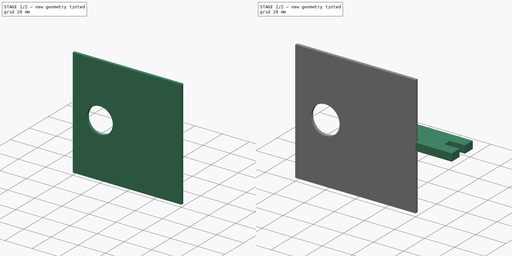
[diagram: build sequence overview — one tinted view per stage of 2, left to right]
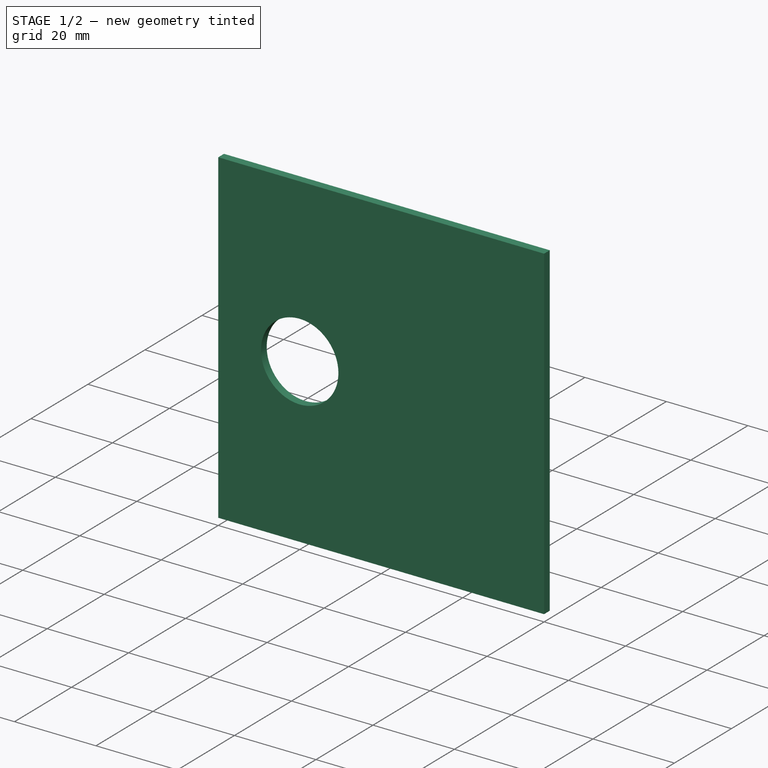
[diagram: stage 1 of 2 — iso view after this stage's code; geometry added in this stage tinted green]
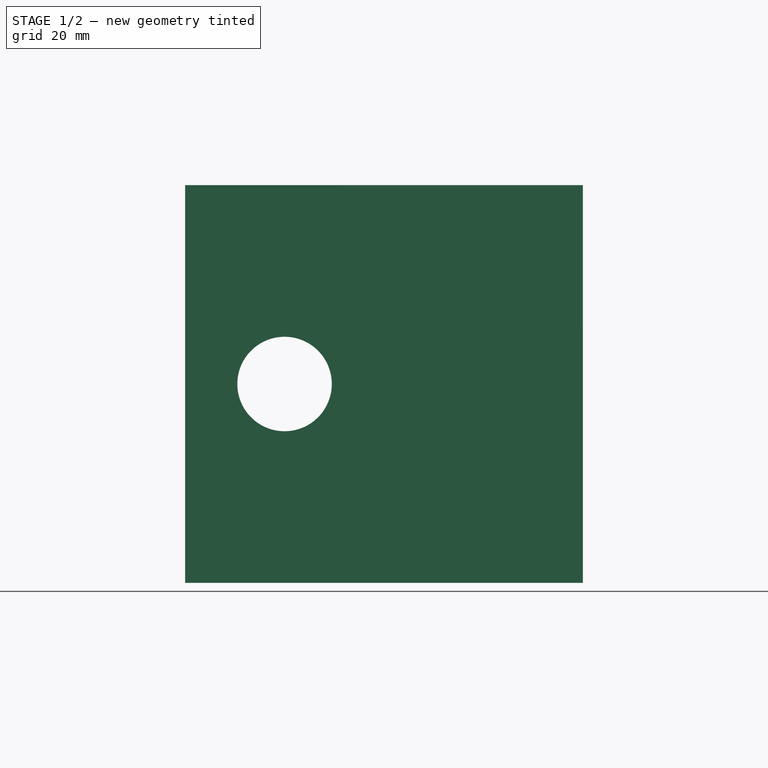
[diagram: stage 1 of 2 — front view after this stage's code; geometry added in this stage tinted green]
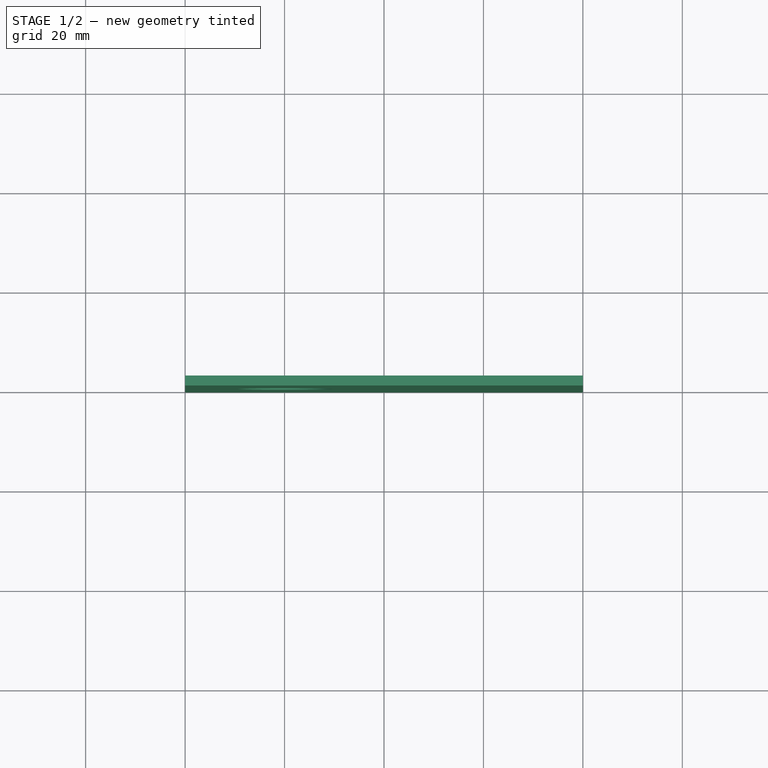
[diagram: stage 1 of 2 — top view after this stage's code; geometry added in this stage tinted green]
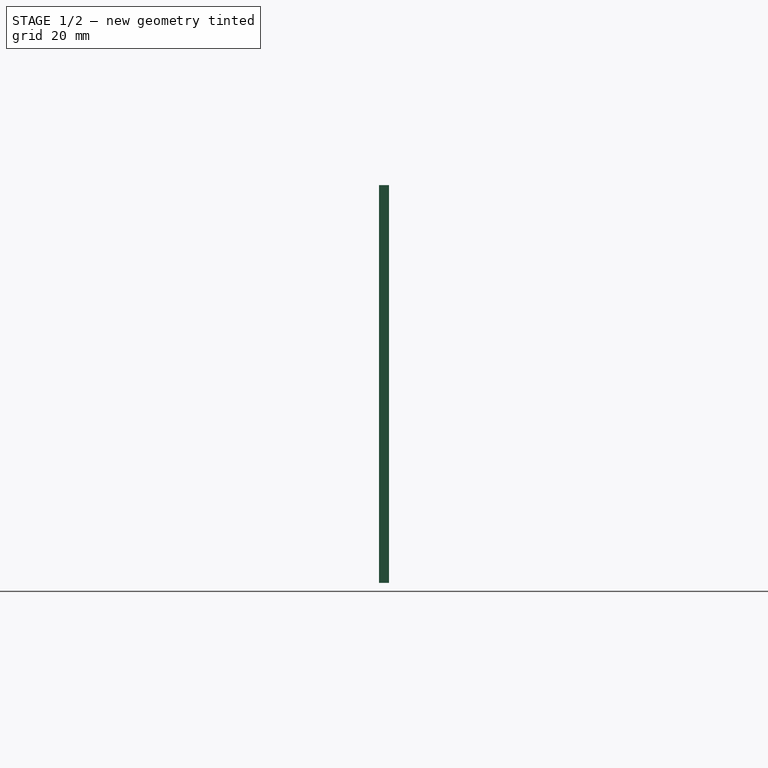
[diagram: stage 1 of 2 — right view after this stage's code; geometry added in this stage tinted green]
FCSTD DOCUMENT  (FreeCAD 1.0R39319 (Git))
Label: X-Axis Ball Holder
License: All rights reserved
LicenseURL: https://en.wikipedia.org/wiki/All_rights_reserved
objects: Sketcher::SketchObject×2, PartDesign::Pad×2, PartDesign::CoordinateSystem×2, PartDesign::Body×1, App::Part×1
note: 13 computed .brp shape members not serialized (recipe doc carries the construction recipe); baked Part::Feature solids carry a one-line shape summary decoded from their .brp

FEATURE [Sketcher::SketchObject] Sketch
  ArcFitTolerance = 1e-06
  AttachmentSupport = -> [XZ_Plane001]
  FullyConstrained = true
  MakeInternals = false
  MapMode = 5
  Placement = pos=(0,0,0) rot=(1,0,0;1.5708rad)
  sketch-geometry (5):
    g0: LineSegment StartX=-80 StartY=40 StartZ=0 EndX=-80 EndY=-40 EndZ=0
    g1: LineSegment StartX=-80 StartY=-40 StartZ=0 EndX=0 EndY=-40 EndZ=0
    g2: LineSegment StartX=0 StartY=-40 StartZ=0 EndX=0 EndY=40 EndZ=0
    g3: LineSegment StartX=0 StartY=40 StartZ=0 EndX=-80 EndY=40 EndZ=0
    g4: Circle CenterX=-60 CenterY=0 CenterZ=0 NormalX=0 NormalY=0 NormalZ=1 AngleXU=0 Radius=9.5
  constraints (14):
    c: Coincident(g0,g1)
    c: Coincident(g1,g2)
    c: Coincident(g2,g3)
    c: Coincident(g3,g0)
    c: Vertical(g2)
    c: Horizontal(g1)
    c: Horizontal(g3)
    c: PointOnObject(g1,g-2)
    c: PointOnObject(g4,g-1)
    c: Distance(g1,g3) = 80
    c: DistanceX(g3,g3) = 80
    c: Diameter(g4) = 19
    c: Distance(g4,g0) = 20
    c: Symmetric(g0,g0,g-1)
FEATURE [PartDesign::Pad] Pad
  Direction = (0,-1,2e-16)
  Length = 2
  Length2 = 10
  Placement = pos=(0,0,0) rot=(1,0,0;1.5708rad)
  Profile = -> Sketch
  ReferenceAxis = -> Sketch [N_Axis]
  Refine = true
  Reversed = true
  Suppressed = false
  Type = 0
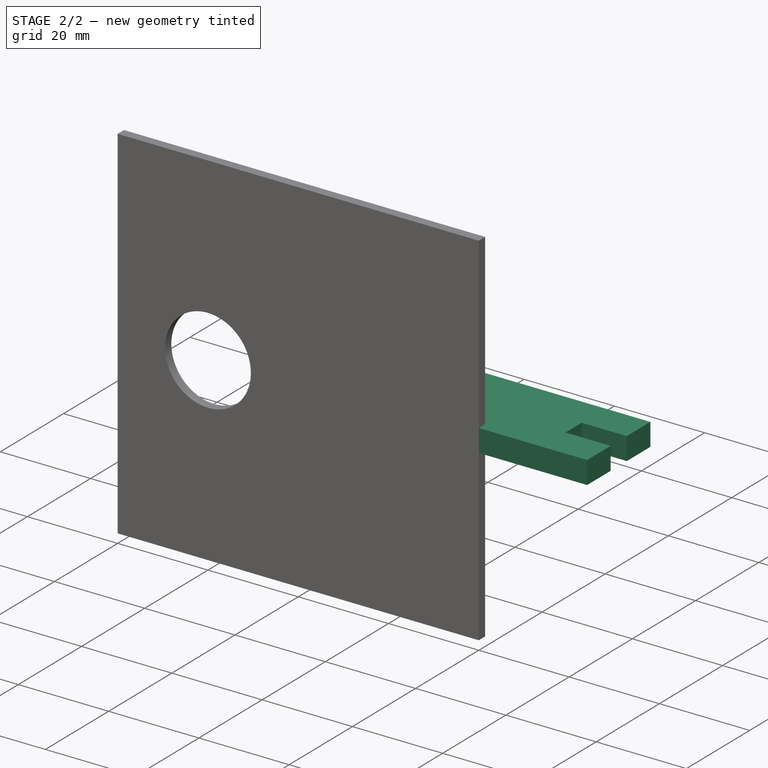
[diagram: stage 2 of 2 — iso view after this stage's code; geometry added in this stage tinted green]
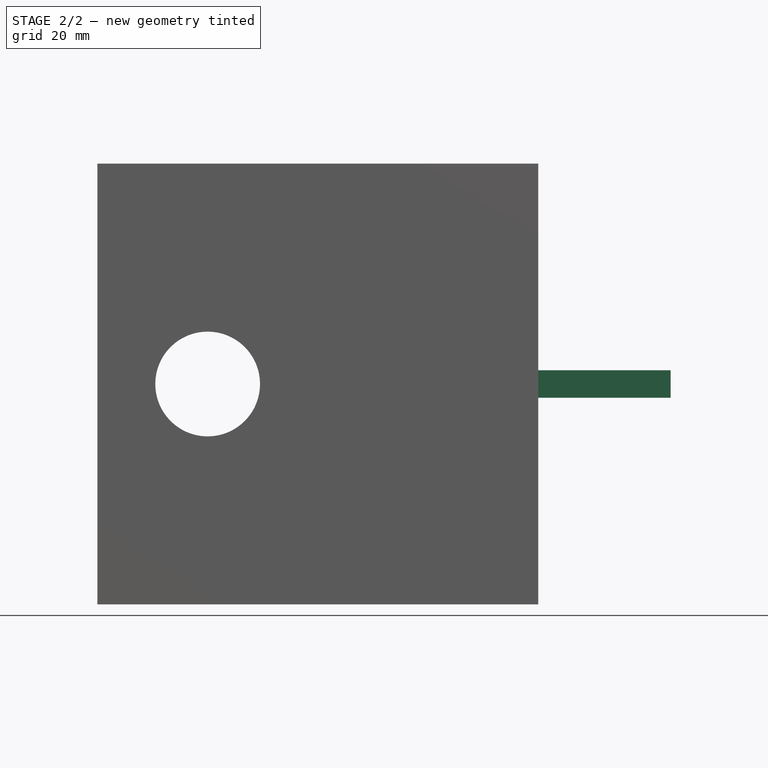
[diagram: stage 2 of 2 — front view after this stage's code; geometry added in this stage tinted green]
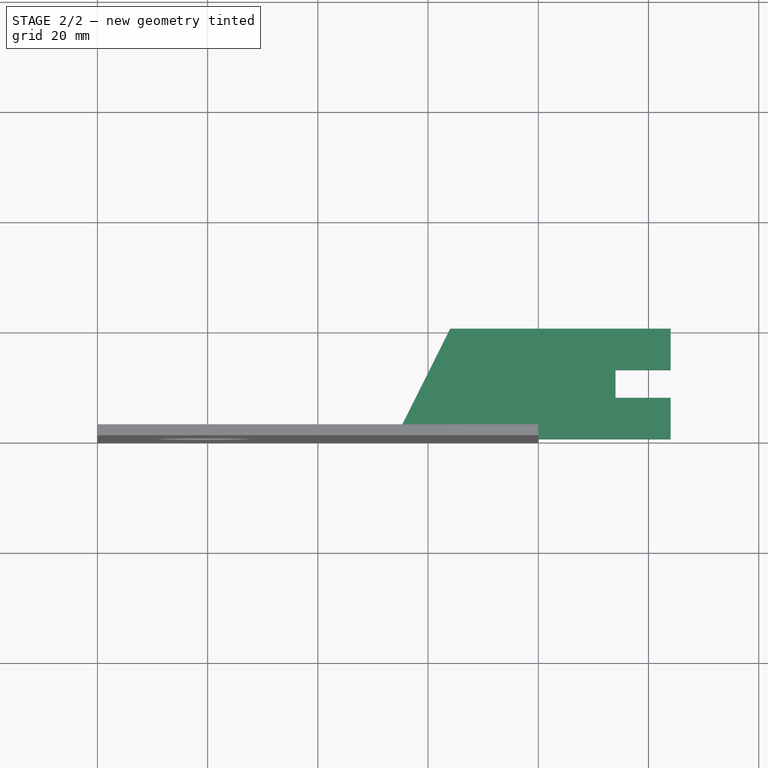
[diagram: stage 2 of 2 — top view after this stage's code; geometry added in this stage tinted green]
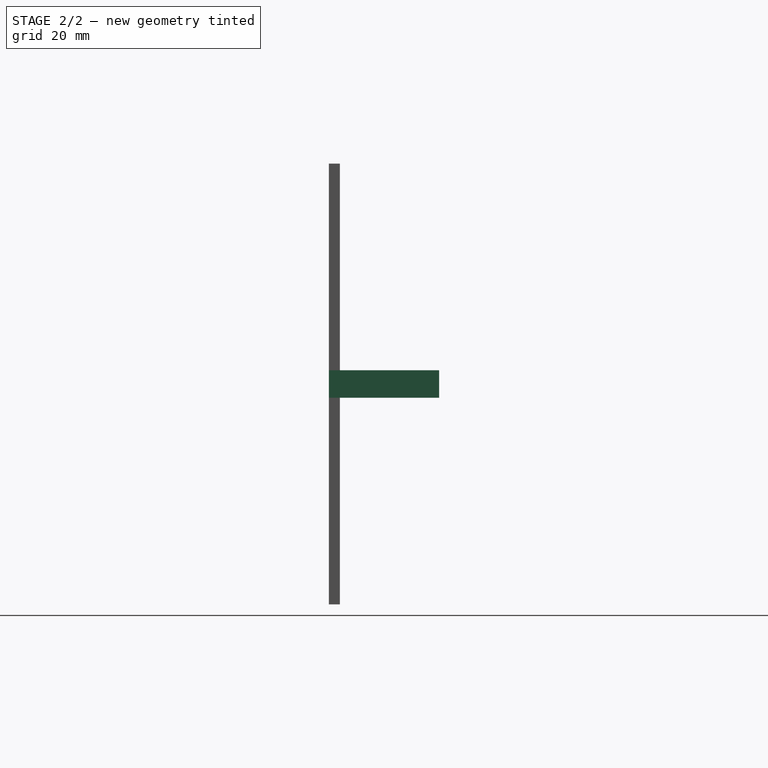
[diagram: stage 2 of 2 — right view after this stage's code; geometry added in this stage tinted green]
FEATURE [Sketcher::SketchObject] Sketch001
  ArcFitTolerance = 1e-06
  AttachmentSupport = -> [XY_Plane001]
  FullyConstrained = true
  MakeInternals = false
  MapMode = 5
  sketch-geometry (9):
    g0: LineSegment StartX=-26 StartY=0 StartZ=0 EndX=-16 EndY=20 EndZ=0
    g1: LineSegment StartX=-16 StartY=20 StartZ=0 EndX=24 EndY=20 EndZ=0
    g2: LineSegment StartX=24 StartY=20 StartZ=0 EndX=24 EndY=12.55 EndZ=0
    g3: LineSegment StartX=24 StartY=12.55 StartZ=0 EndX=14 EndY=12.55 EndZ=0
    g4: LineSegment StartX=14 StartY=12.55 StartZ=0 EndX=14 EndY=7.45 EndZ=0
    g5: LineSegment StartX=14 StartY=7.45 StartZ=0 EndX=24 EndY=7.45 EndZ=0
    g6: LineSegment StartX=24 StartY=7.45 StartZ=0 EndX=24 EndY=0 EndZ=0
    g7: LineSegment StartX=24 StartY=0 StartZ=0 EndX=-26 EndY=0 EndZ=0
    g8: GeomPoint [constr] X=14 Y=10 Z=0
  constraints (25):
    c: PointOnObject(g0,g-1)
    c: Coincident(g0,g1)
    c: Horizontal(g1)
    c: Coincident(g1,g2)
    c: Vertical(g2)
    c: Coincident(g2,g3)
    c: Horizontal(g3)
    c: Coincident(g3,g4)
    c: Vertical(g4)
    c: Coincident(g4,g5)
    c: Horizontal(g5)
    c: Coincident(g5,g6)
    c: PointOnObject(g6,g-1)
    c: Vertical(g6)
    c: Coincident(g6,g7)
    c: Coincident(g7,g0)
    c: Distance(g-1,g6) = 24
    c: PointOnObject(g2,g6)
    c: Distance(g2,g4) = 10
    c: DistanceX(g1,g1) = 40
    c: Distance(g0,g6) = 50
    c: DistanceY(g4,g4) = 5.1
    c: Distance(g1,g7) = 20
    c: Symmetric(g4,g4,g8)
    c: Distance(g8,g1) = 10
FEATURE [PartDesign::Pad] Pad001
  BaseFeature = -> Pad
  Direction = (0,0,1)
  Length = 5
  Length2 = 10
  Midplane = true
  Placement = pos=(0,0,0) rot=(1,0,0;1.5708rad)
  Profile = -> Sketch001
  ReferenceAxis = -> Sketch001 [N_Axis]
  Refine = true
  Suppressed = false
  Type = 0
FEATURE [PartDesign::Body] Body  label="X-Axis Ball Holder Body001"
  AllowCompound = false
  Group = -> [Sketch,Pad,Sketch001,Pad001]
  Origin = -> Origin001
  Tip = -> Pad001
FEATURE [PartDesign::CoordinateSystem] LCS_1
  AttacherType = Attacher::AttachEngine3D
  AttachmentOffset = pos=(14,10,0) rot=(0,0,1;0rad)
  AttachmentSupport = -> [XY_Plane001]
  MapMode = 5
  Placement = pos=(14,10,0) rot=(0,0,1;0rad)
FEATURE [PartDesign::CoordinateSystem] ball_point_ground  label="ball point ground"
  AttacherType = Attacher::AttachEngine3D
  AttachmentOffset = pos=(0,0,0) rot=(-0.57735,0.57735,-0.57735;2.0944rad)
  AttachmentSupport = -> [Pad001]
  MapMode = 11
  Placement = pos=(-60,0,0) rot=(0,0,1;0rad)
FEATURE [App::Part] Part  label="X-Axis Ball Holder Body"
  Group = -> [Body,LCS_1,ball_point_ground]
  Origin = -> Origin
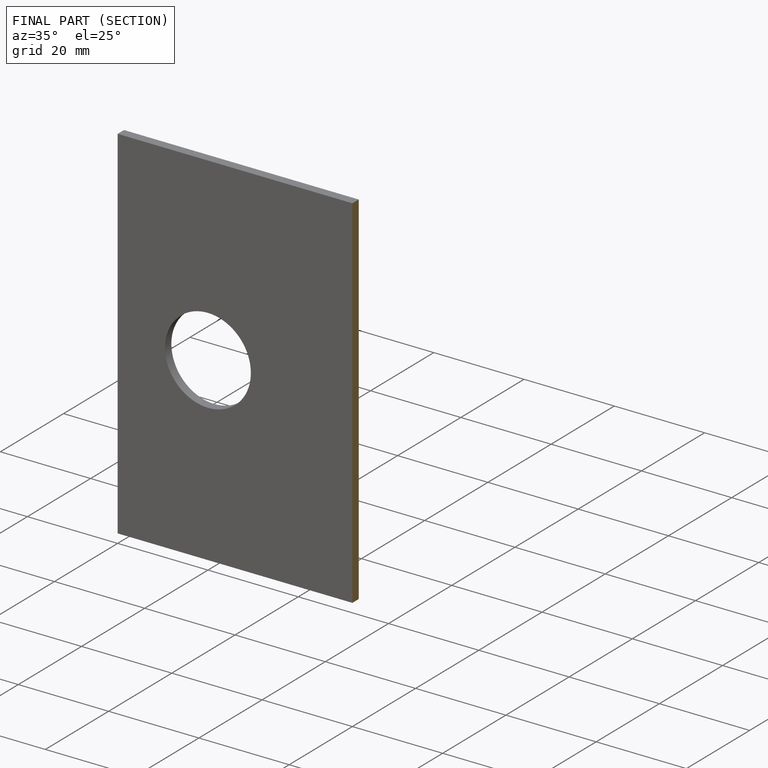
[diagram: finished part — half-section view (interior)]
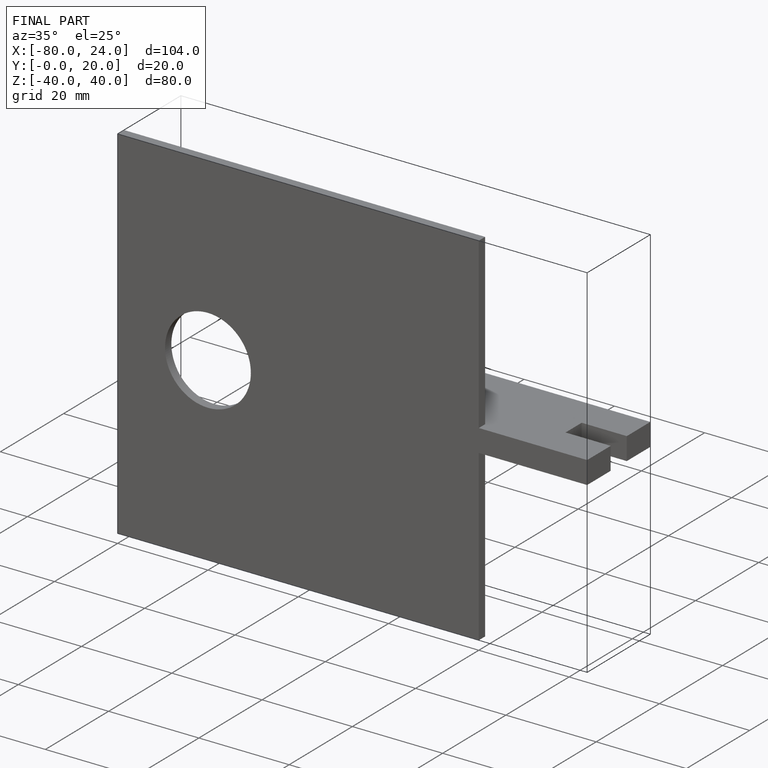
[diagram: finished part — iso view with bounding-box wireframe]
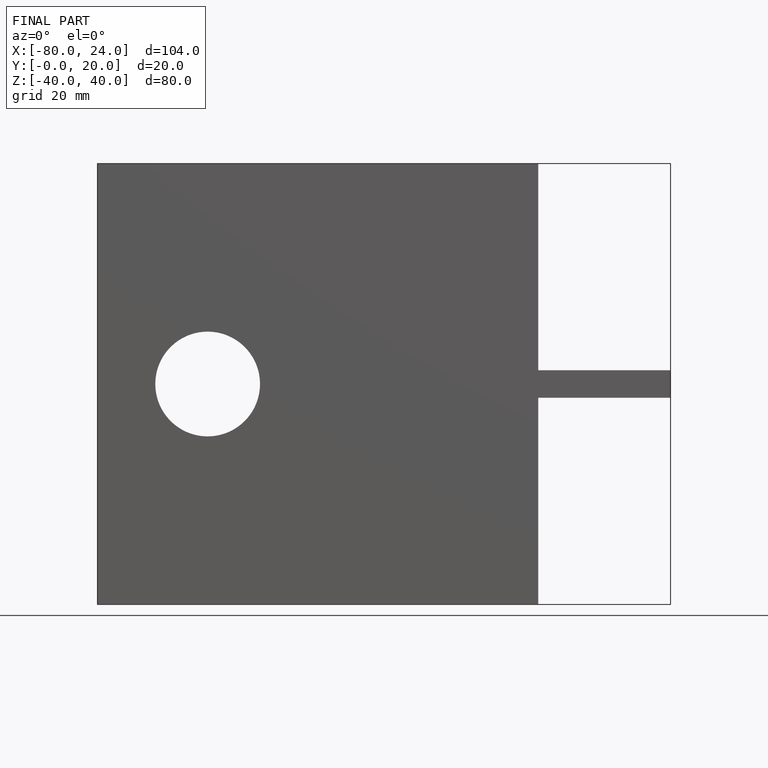
[diagram: finished part — front view with bounding-box wireframe]
